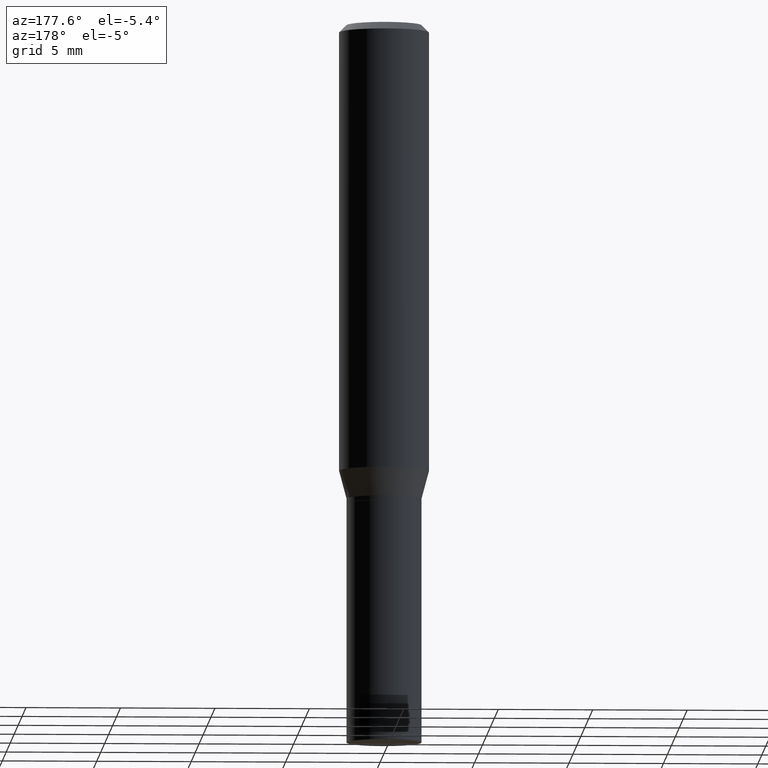
[diagram: clean part render]
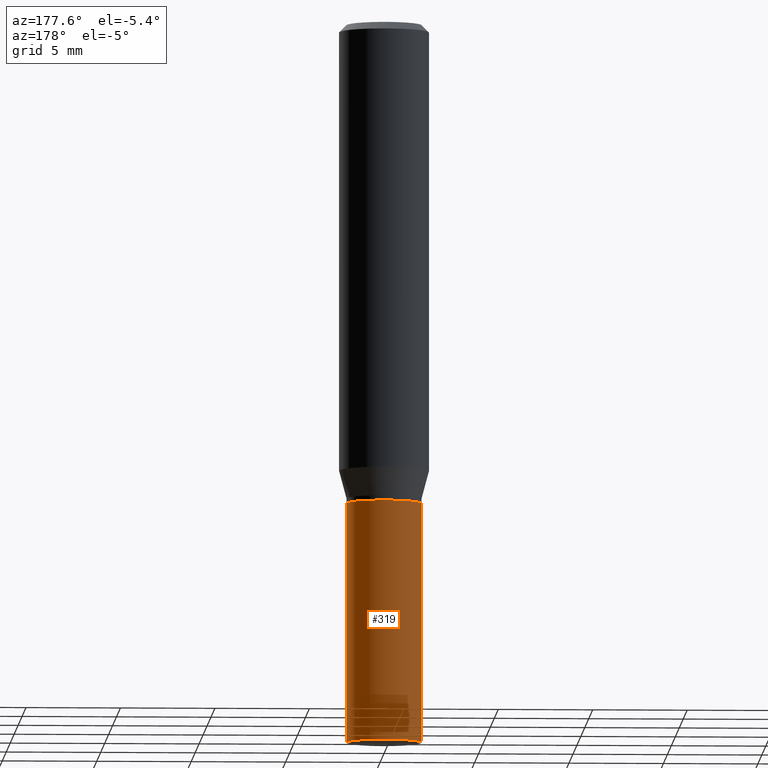
[diagram: same view with one face highlighted and labeled with its STEP entity id]
A machine part, auxiliary view. The second image highlights one B-rep face of the part: STEP entity #319.
In plain terms, the highlighted cylindrical surface (partial cylindrical patch) has radius 1.9837 mm, axis along (-0, 0, 1).
Its self-contained STEP definition (entity closure, byte-faithful):
#23 = CARTESIAN_POINT ( 'NONE',  ( 0.000000000000000000, 0.000000000000000000, 0.000000000000000000 ) ) ;
#32 = DIRECTION ( 'NONE',  ( -2.445468806185136597E-29, 3.491481338843145583E-15, 1.000000000000000000 ) ) ;
#40 = DIRECTION ( 'NONE',  ( -2.445468806185136597E-29, 3.491481338843145583E-15, 1.000000000000000000 ) ) ;
#48 = CARTESIAN_POINT ( 'NONE',  ( 3.668203209277704895E-29, -5.237222008264718177E-15, -1.500000000000000222 ) ) ;
#58 = EDGE_CURVE ( 'NONE', #190, #217, #280, .T. ) ;
#66 = ORIENTED_EDGE ( 'NONE', *, *, #337, .F. ) ;
#84 = DIRECTION ( 'NONE',  ( -2.445468806185136597E-29, 3.491481338843145583E-15, 1.000000000000000000 ) ) ;
#107 = LINE ( 'NONE', #329, #114 ) ;
#114 = VECTOR ( 'NONE', #328, 39.37007874015748143 ) ;
#121 = EDGE_LOOP ( 'NONE', ( #409, #140, #152, #66 ) ) ;
#136 = VERTEX_POINT ( 'NONE', #391 ) ;
#140 = ORIENTED_EDGE ( 'NONE', *, *, #151, .T. ) ;
#141 = CARTESIAN_POINT ( 'NONE',  ( 2.445468806185136877E-29, -3.491481338843145977E-15, -1.000000000000000222 ) ) ;
#151 = EDGE_CURVE ( 'NONE', #136, #217, #206, .T. ) ;
#152 = ORIENTED_EDGE ( 'NONE', *, *, #58, .F. ) ;
#158 = AXIS2_PLACEMENT_3D ( 'NONE', #48, #84, #311 ) ;
#190 = VERTEX_POINT ( 'NONE', #414 ) ;
#206 = LINE ( 'NONE', #286, #323 ) ;
#217 = VERTEX_POINT ( 'NONE', #384 ) ;
#235 = EDGE_CURVE ( 'NONE', #407, #136, #299, .T. ) ;
#240 = DIRECTION ( 'NONE',  ( 1.000000000000000000, -6.982962677686266711E-15, 0.000000000000000000 ) ) ;
#280 = CIRCLE ( 'NONE', #422, 0.07810000000000000275 ) ;
#286 = CARTESIAN_POINT ( 'NONE',  ( -0.07810000000000000275, 5.549338766286382647E-16, -3.841688305489081275E-30 ) ) ;
#294 = FACE_OUTER_BOUND ( 'NONE', #121, .T. ) ;
#299 = CIRCLE ( 'NONE', #158, 0.07810000000000000275 ) ;
#311 = DIRECTION ( 'NONE',  ( 1.000000000000000000, -6.982962677686266711E-15, 0.000000000000000000 ) ) ;
#319 = ADVANCED_FACE ( 'NONE', ( #294 ), #365, .T. ) ;
#323 = VECTOR ( 'NONE', #444, 39.37007874015748143 ) ;
#328 = DIRECTION ( 'NONE',  ( -2.445468806185136877E-29, 3.491481338843145188E-15, 1.000000000000000000 ) ) ;
#329 = CARTESIAN_POINT ( 'NONE',  ( 0.07810000000000000275, -5.453693851272974364E-16, 3.808294061896625703E-30 ) ) ;
#333 = DIRECTION ( 'NONE',  ( 1.000000000000000000, -6.982962677686266711E-15, 4.876176775795935232E-29 ) ) ;
#337 = EDGE_CURVE ( 'NONE', #407, #190, #107, .T. ) ;
#365 = CYLINDRICAL_SURFACE ( 'NONE', #463, 0.07810000000000000275 ) ;
#384 = CARTESIAN_POINT ( 'NONE',  ( -0.07810000000000000275, -3.809417796925293812E-15, -1.000000000000000222 ) ) ;
#391 = CARTESIAN_POINT ( 'NONE',  ( -0.07810000000000000275, -3.809417796925293812E-15, -1.500000000000000222 ) ) ;
#407 = VERTEX_POINT ( 'NONE', #461 ) ;
#409 = ORIENTED_EDGE ( 'NONE', *, *, #235, .T. ) ;
#414 = CARTESIAN_POINT ( 'NONE',  ( 0.07810000000000000275, -4.036850723970443413E-15, -1.000000000000000222 ) ) ;
#422 = AXIS2_PLACEMENT_3D ( 'NONE', #141, #40, #240 ) ;
#444 = DIRECTION ( 'NONE',  ( -2.445468806185136877E-29, 3.491481338843145188E-15, 1.000000000000000000 ) ) ;
#461 = CARTESIAN_POINT ( 'NONE',  ( 0.07810000000000000275, -5.782591393392015613E-15, -1.500000000000000222 ) ) ;
#463 = AXIS2_PLACEMENT_3D ( 'NONE', #23, #32, #333 ) ;